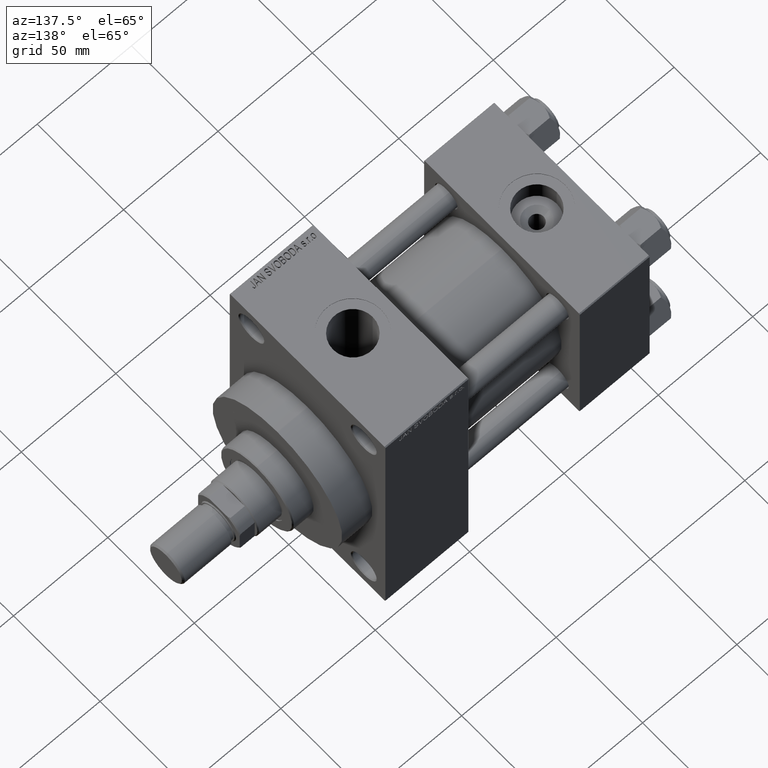
[diagram: clean part render]
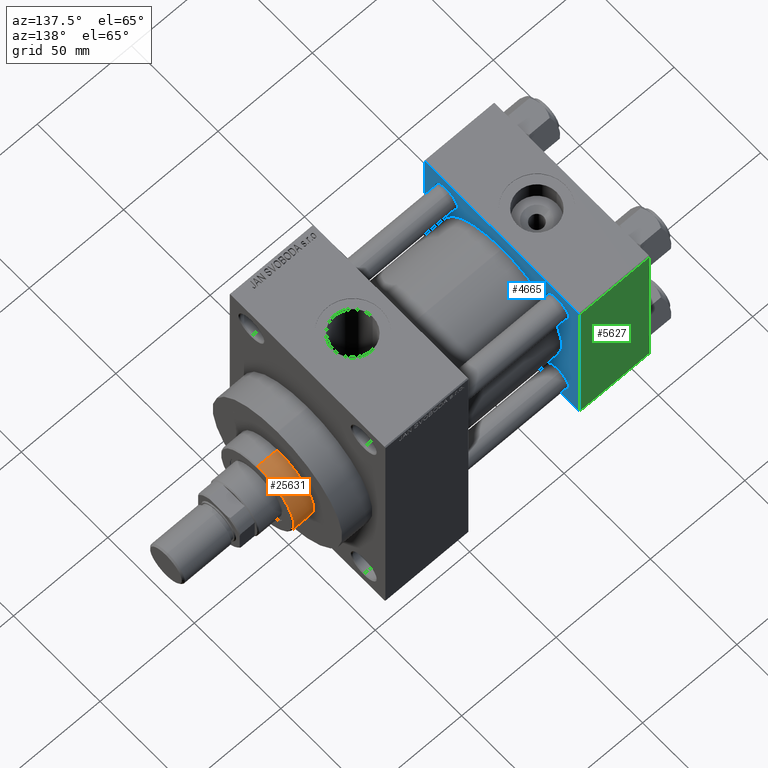
[diagram: same view with three faces highlighted in distinct colors, each labeled with its STEP entity id]
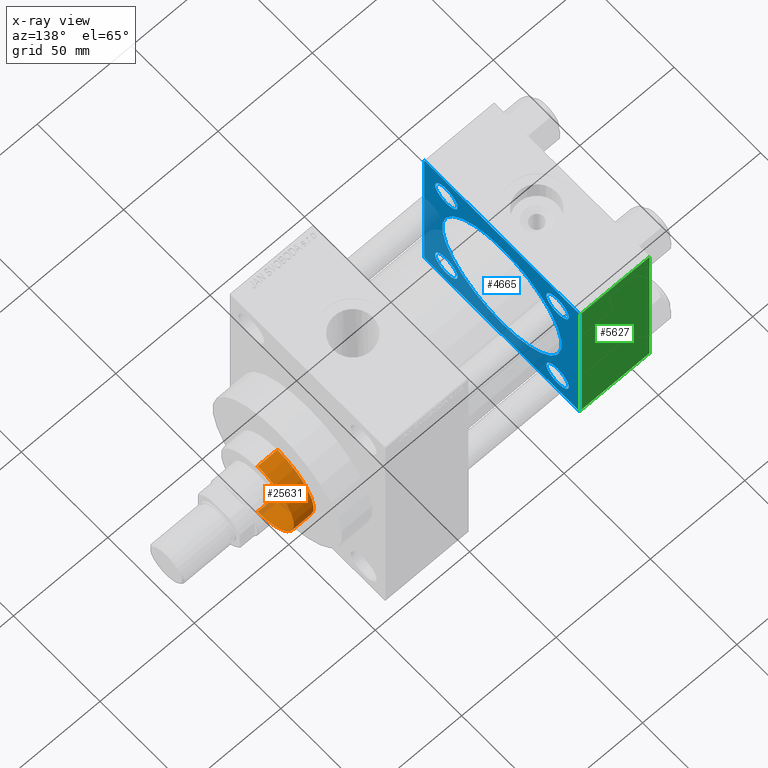
[diagram: x-ray of the same camera — body ghosted, the three highlighted faces saturated]
A machine part, auxiliary view with three faces highlighted in distinct colors.
The next image is the same camera in x-ray (body ghosted, the three faces saturated) — at least one of them is partly hidden behind the body in this view.
Their STEP definitions:

[orange] entity #25631 — the highlighted cylindrical surface (partial cylindrical patch) has radius 21 mm, axis along (-1, 0, 0).
#2385 = ORIENTED_EDGE ( 'NONE', *, *, #3166, .F. ) ;
#2938 = VERTEX_POINT ( 'NONE', #44275 ) ;
#2951 = AXIS2_PLACEMENT_3D ( 'NONE', #23863, #16398, #31340 ) ;
#3166 = EDGE_CURVE ( 'NONE', #7583, #44455, #44223, .T. ) ;
#4418 = DIRECTION ( 'NONE',  ( -1.000000000000000000, 0.000000000000000000, 0.000000000000000000 ) ) ;
#5724 = VECTOR ( 'NONE', #37229, 1000.000000000000000 ) ;
#7583 = VERTEX_POINT ( 'NONE', #23283 ) ;
#8013 = CARTESIAN_POINT ( 'NONE',  ( 21.00000000000000000, 2.571758278209441661E-15, 43.25999999999999801 ) ) ;
#8029 = FACE_OUTER_BOUND ( 'NONE', #42785, .T. ) ;
#8054 = CARTESIAN_POINT ( 'NONE',  ( -21.00000000000000000, 0.000000000000000000, 53.76000000000001933 ) ) ;
#9073 = VECTOR ( 'NONE', #9357, 1000.000000000000000 ) ;
#9357 = DIRECTION ( 'NONE',  ( -0.000000000000000000, -0.000000000000000000, -1.000000000000000000 ) ) ;
#10550 = ORIENTED_EDGE ( 'NONE', *, *, #46655, .T. ) ;
#10722 = DIRECTION ( 'NONE',  ( 1.000000000000000000, 0.000000000000000000, 0.000000000000000000 ) ) ;
#10770 = VERTEX_POINT ( 'NONE', #8054 ) ;
#10812 = ORIENTED_EDGE ( 'NONE', *, *, #16061, .T. ) ;
#12119 = CARTESIAN_POINT ( 'NONE',  ( 0.000000000000000000, 0.000000000000000000, 54.26000000000000512 ) ) ;
#12403 = AXIS2_PLACEMENT_3D ( 'NONE', #12119, #34533, #4418 ) ;
#13716 = EDGE_CURVE ( 'NONE', #10770, #2938, #20186, .T. ) ;
#16061 = EDGE_CURVE ( 'NONE', #2938, #44455, #39140, .T. ) ;
#16398 = DIRECTION ( 'NONE',  ( 0.000000000000000000, 0.000000000000000000, -1.000000000000000000 ) ) ;
#20186 = LINE ( 'NONE', #27164, #9073 ) ;
#21672 = ORIENTED_EDGE ( 'NONE', *, *, #13716, .T. ) ;
#23283 = CARTESIAN_POINT ( 'NONE',  ( 21.00000000000000000, 2.571758278209441661E-15, 53.76000000000001933 ) ) ;
#23863 = CARTESIAN_POINT ( 'NONE',  ( 0.000000000000000000, 0.000000000000000000, 53.76000000000001933 ) ) ;
#24445 = DIRECTION ( 'NONE',  ( 0.000000000000000000, 0.000000000000000000, 1.000000000000000000 ) ) ;
#25270 = AXIS2_PLACEMENT_3D ( 'NONE', #43740, #24445, #10722 ) ;
#25631 = ADVANCED_FACE ( 'NONE', ( #8029 ), #27027, .T. ) ;
#27027 = CYLINDRICAL_SURFACE ( 'NONE', #12403, 21.00000000000000000 ) ;
#27164 = CARTESIAN_POINT ( 'NONE',  ( -21.00000000000000000, 0.000000000000000000, 54.26000000000000512 ) ) ;
#31340 = DIRECTION ( 'NONE',  ( 1.000000000000000000, 0.000000000000000000, 0.000000000000000000 ) ) ;
#34533 = DIRECTION ( 'NONE',  ( -0.000000000000000000, -0.000000000000000000, -1.000000000000000000 ) ) ;
#37229 = DIRECTION ( 'NONE',  ( -0.000000000000000000, -0.000000000000000000, -1.000000000000000000 ) ) ;
#39140 = CIRCLE ( 'NONE', #25270, 21.00000000000000000 ) ;
#42785 = EDGE_LOOP ( 'NONE', ( #2385, #10550, #21672, #10812 ) ) ;
#43740 = CARTESIAN_POINT ( 'NONE',  ( 0.000000000000000000, 0.000000000000000000, 43.25999999999999801 ) ) ;
#44223 = LINE ( 'NONE', #45185, #5724 ) ;
#44275 = CARTESIAN_POINT ( 'NONE',  ( -21.00000000000000000, 0.000000000000000000, 43.25999999999999801 ) ) ;
#44455 = VERTEX_POINT ( 'NONE', #8013 ) ;
#44534 = CIRCLE ( 'NONE', #2951, 21.00000000000000000 ) ;
#45185 = CARTESIAN_POINT ( 'NONE',  ( 21.00000000000000000, 2.571758278209441661E-15, 54.26000000000000512 ) ) ;
#46655 = EDGE_CURVE ( 'NONE', #7583, #10770, #44534, .T. ) ;

[blue] entity #4665 — the highlighted planar face has unit normal (-1, 0, 0).
#119 = EDGE_CURVE ( 'NONE', #15683, #17046, #37806, .T. ) ;
#161 = DIRECTION ( 'NONE',  ( 0.000000000000000000, 0.000000000000000000, 1.000000000000000000 ) ) ;
#200 = CARTESIAN_POINT ( 'NONE',  ( 37.00000000000000000, -32.14999999999997726, 38.65000000000001990 ) ) ;
#249 = CARTESIAN_POINT ( 'NONE',  ( 37.00000000000000000, -45.00000000000000711, 44.49999999999997158 ) ) ;
#304 = EDGE_CURVE ( 'NONE', #4914, #24771, #36648, .T. ) ;
#455 = CIRCLE ( 'NONE', #46620, 34.50000000000000000 ) ;
#675 = DIRECTION ( 'NONE',  ( 1.000000000000000000, -0.000000000000000000, 0.000000000000000000 ) ) ;
#1119 = CARTESIAN_POINT ( 'NONE',  ( 37.00000000000000000, 32.14999999999999147, -25.64999999999997016 ) ) ;
#1333 = CARTESIAN_POINT ( 'NONE',  ( 37.00000000000000000, -44.49999999999995737, -45.00000000000000000 ) ) ;
#1382 = FACE_OUTER_BOUND ( 'NONE', #25177, .T. ) ;
#1383 = CARTESIAN_POINT ( 'NONE',  ( 37.00000000000000000, -2.602085213965210642E-15, 34.50000000000000000 ) ) ;
#2033 = EDGE_CURVE ( 'NONE', #8396, #43105, #24354, .T. ) ;
#2348 = CARTESIAN_POINT ( 'NONE',  ( 37.00000000000000000, 32.14999999999999147, 25.64999999999997016 ) ) ;
#3047 = DIRECTION ( 'NONE',  ( -1.000000000000000000, 0.000000000000000000, -0.000000000000000000 ) ) ;
#3231 = CARTESIAN_POINT ( 'NONE',  ( 37.00000000000000000, 44.99999999999998579, -44.49999999999998579 ) ) ;
#3324 = CARTESIAN_POINT ( 'NONE',  ( 37.00000000000000000, -2.602085213965210642E-15, 0.000000000000000000 ) ) ;
#3522 = CIRCLE ( 'NONE', #40469, 6.500000000000033751 ) ;
#3543 = AXIS2_PLACEMENT_3D ( 'NONE', #13823, #39602, #16963 ) ;
#3667 = ORIENTED_EDGE ( 'NONE', *, *, #31249, .T. ) ;
#3769 = CARTESIAN_POINT ( 'NONE',  ( 37.00000000000000000, -32.14999999999997726, -32.15000000000001279 ) ) ;
#4665 = ADVANCED_FACE ( 'NONE', ( #26014, #30999, #44359, #34642, #22165, #1382 ), #45490, .F. ) ;
#4914 = VERTEX_POINT ( 'NONE', #32910 ) ;
#5019 = EDGE_CURVE ( 'NONE', #28124, #7600, #455, .T. ) ;
#5133 = DIRECTION ( 'NONE',  ( 0.000000000000000000, 0.000000000000000000, 1.000000000000000000 ) ) ;
#5352 = CARTESIAN_POINT ( 'NONE',  ( 37.00000000000000000, 44.49999999999998579, 45.00000000000001421 ) ) ;
#5715 = ORIENTED_EDGE ( 'NONE', *, *, #40942, .T. ) ;
#5935 = CARTESIAN_POINT ( 'NONE',  ( 37.00000000000000000, 44.99999999999998579, -44.49999999999995737 ) ) ;
#6571 = ORIENTED_EDGE ( 'NONE', *, *, #41485, .T. ) ;
#6605 = DIRECTION ( 'NONE',  ( -0.000000000000000000, 0.7071067811865474617, 0.7071067811865474617 ) ) ;
#6995 = DIRECTION ( 'NONE',  ( -0.000000000000000000, -0.7071067811865425767, -0.7071067811865524577 ) ) ;
#7163 = EDGE_CURVE ( 'NONE', #34786, #24506, #24960, .T. ) ;
#7600 = VERTEX_POINT ( 'NONE', #1383 ) ;
#8035 = AXIS2_PLACEMENT_3D ( 'NONE', #3769, #33170, #161 ) ;
#8043 = CARTESIAN_POINT ( 'NONE',  ( 37.00000000000000000, -45.00000000000000000, -44.49999999999995737 ) ) ;
#8249 = CARTESIAN_POINT ( 'NONE',  ( 37.00000000000000000, -32.14999999999997726, 32.15000000000001279 ) ) ;
#8396 = VERTEX_POINT ( 'NONE', #47032 ) ;
#8997 = CARTESIAN_POINT ( 'NONE',  ( 37.00000000000000000, -2.602085213965210642E-15, 0.000000000000000000 ) ) ;
#9401 = ORIENTED_EDGE ( 'NONE', *, *, #27285, .T. ) ;
#9442 = ORIENTED_EDGE ( 'NONE', *, *, #45425, .F. ) ;
#9496 = EDGE_LOOP ( 'NONE', ( #22797, #10397 ) ) ;
#9512 = CIRCLE ( 'NONE', #13352, 6.500000000000033751 ) ;
#9671 = EDGE_LOOP ( 'NONE', ( #31462, #18607 ) ) ;
#9708 = VERTEX_POINT ( 'NONE', #2348 ) ;
#9792 = CARTESIAN_POINT ( 'NONE',  ( 37.00000000000000000, 32.14999999999999147, -38.65000000000004121 ) ) ;
#9859 = CIRCLE ( 'NONE', #20615, 6.500000000000005329 ) ;
#10023 = CARTESIAN_POINT ( 'NONE',  ( 37.00000000000000000, -32.14999999999997726, -25.65000000000000568 ) ) ;
#10397 = ORIENTED_EDGE ( 'NONE', *, *, #36474, .T. ) ;
#10427 = LINE ( 'NONE', #25094, #35973 ) ;
#10936 = ORIENTED_EDGE ( 'NONE', *, *, #12566, .T. ) ;
#11573 = CARTESIAN_POINT ( 'NONE',  ( 37.00000000000000000, -32.14999999999997726, -32.15000000000001279 ) ) ;
#11658 = AXIS2_PLACEMENT_3D ( 'NONE', #8249, #30395, #20022 ) ;
#12445 = CARTESIAN_POINT ( 'NONE',  ( 37.00000000000000000, 32.14999999999999147, -32.15000000000000568 ) ) ;
#12566 = EDGE_CURVE ( 'NONE', #47278, #40579, #10427, .T. ) ;
#13095 = CARTESIAN_POINT ( 'NONE',  ( 37.00000000000000000, -32.14999999999997726, 25.65000000000000568 ) ) ;
#13352 = AXIS2_PLACEMENT_3D ( 'NONE', #37028, #3047, #47163 ) ;
#13823 = CARTESIAN_POINT ( 'NONE',  ( 37.00000000000000000, 32.14999999999999147, 32.15000000000000568 ) ) ;
#14066 = VECTOR ( 'NONE', #39076, 1000.000000000000114 ) ;
#14536 = EDGE_LOOP ( 'NONE', ( #9401, #47004 ) ) ;
#14597 = EDGE_CURVE ( 'NONE', #28244, #46030, #9859, .T. ) ;
#15075 = VECTOR ( 'NONE', #18836, 1000.000000000000000 ) ;
#15683 = VERTEX_POINT ( 'NONE', #200 ) ;
#16236 = CARTESIAN_POINT ( 'NONE',  ( 37.00000000000000000, 32.14999999999999147, -32.15000000000000568 ) ) ;
#16963 = DIRECTION ( 'NONE',  ( 0.000000000000000000, 0.000000000000000000, 1.000000000000000000 ) ) ;
#17046 = VERTEX_POINT ( 'NONE', #13095 ) ;
#17769 = CARTESIAN_POINT ( 'NONE',  ( 37.00000000000000000, 44.49999999999998579, -44.99999999999998579 ) ) ;
#18002 = DIRECTION ( 'NONE',  ( 0.000000000000000000, 0.000000000000000000, 1.000000000000000000 ) ) ;
#18154 = VERTEX_POINT ( 'NONE', #5935 ) ;
#18251 = VECTOR ( 'NONE', #6605, 1000.000000000000114 ) ;
#18301 = DIRECTION ( 'NONE',  ( -0.000000000000000000, 0.000000000000000000, 1.000000000000000000 ) ) ;
#18436 = ORIENTED_EDGE ( 'NONE', *, *, #30909, .F. ) ;
#18607 = ORIENTED_EDGE ( 'NONE', *, *, #5019, .F. ) ;
#18836 = DIRECTION ( 'NONE',  ( 0.000000000000000000, 7.709882115452476934E-17, -1.000000000000000000 ) ) ;
#18912 = AXIS2_PLACEMENT_3D ( 'NONE', #3324, #675, #18002 ) ;
#19820 = CARTESIAN_POINT ( 'NONE',  ( 37.00000000000000000, -32.14999999999997726, 32.15000000000001279 ) ) ;
#20022 = DIRECTION ( 'NONE',  ( 0.000000000000000000, 0.000000000000000000, 1.000000000000000000 ) ) ;
#20615 = AXIS2_PLACEMENT_3D ( 'NONE', #11573, #22401, #26248 ) ;
#21394 = CARTESIAN_POINT ( 'NONE',  ( 37.00000000000000000, 44.99999999999998579, 45.00000000000001421 ) ) ;
#21668 = CIRCLE ( 'NONE', #23219, 6.500000000000005329 ) ;
#22165 = FACE_BOUND ( 'NONE', #9671, .T. ) ;
#22173 = ORIENTED_EDGE ( 'NONE', *, *, #37020, .T. ) ;
#22219 = CARTESIAN_POINT ( 'NONE',  ( 37.00000000000000000, -45.00000000000000711, 45.00000000000000000 ) ) ;
#22401 = DIRECTION ( 'NONE',  ( -1.000000000000000000, 0.000000000000000000, -0.000000000000000000 ) ) ;
#22797 = ORIENTED_EDGE ( 'NONE', *, *, #7163, .T. ) ;
#23219 = AXIS2_PLACEMENT_3D ( 'NONE', #19820, #46098, #5133 ) ;
#23717 = EDGE_LOOP ( 'NONE', ( #6571, #3667 ) ) ;
#23752 = DIRECTION ( 'NONE',  ( 0.000000000000000000, 0.000000000000000000, 1.000000000000000000 ) ) ;
#24067 = VECTOR ( 'NONE', #41412, 1000.000000000000000 ) ;
#24294 = DIRECTION ( 'NONE',  ( 0.000000000000000000, -1.000000000000000000, -1.541976423090495387E-16 ) ) ;
#24302 = VECTOR ( 'NONE', #24294, 1000.000000000000000 ) ;
#24354 = LINE ( 'NONE', #5352, #14066 ) ;
#24506 = VERTEX_POINT ( 'NONE', #1119 ) ;
#24771 = VERTEX_POINT ( 'NONE', #43334 ) ;
#24899 = LINE ( 'NONE', #32634, #34487 ) ;
#24960 = CIRCLE ( 'NONE', #28821, 6.500000000000033751 ) ;
#25094 = CARTESIAN_POINT ( 'NONE',  ( 37.00000000000000000, -44.49999999999998579, -45.00000000000000000 ) ) ;
#25177 = EDGE_LOOP ( 'NONE', ( #9442, #28760, #18436, #42409, #5715, #43148, #22173, #10936 ) ) ;
#26014 = FACE_BOUND ( 'NONE', #31517, .T. ) ;
#26216 = LINE ( 'NONE', #34180, #24067 ) ;
#26248 = DIRECTION ( 'NONE',  ( 0.000000000000000000, 0.000000000000000000, 1.000000000000000000 ) ) ;
#26871 = ORIENTED_EDGE ( 'NONE', *, *, #14597, .T. ) ;
#27285 = EDGE_CURVE ( 'NONE', #17046, #15683, #21668, .T. ) ;
#27315 = AXIS2_PLACEMENT_3D ( 'NONE', #40500, #36892, #18301 ) ;
#27648 = VERTEX_POINT ( 'NONE', #46892 ) ;
#28011 = DIRECTION ( 'NONE',  ( 0.000000000000000000, 0.000000000000000000, 1.000000000000000000 ) ) ;
#28124 = VERTEX_POINT ( 'NONE', #46775 ) ;
#28244 = VERTEX_POINT ( 'NONE', #10023 ) ;
#28760 = ORIENTED_EDGE ( 'NONE', *, *, #44550, .T. ) ;
#28821 = AXIS2_PLACEMENT_3D ( 'NONE', #16236, #42030, #28011 ) ;
#28859 = LINE ( 'NONE', #21394, #24302 ) ;
#29009 = DIRECTION ( 'NONE',  ( 0.000000000000000000, -1.000000000000000000, -1.541976423090495633E-16 ) ) ;
#29721 = ORIENTED_EDGE ( 'NONE', *, *, #32286, .T. ) ;
#30395 = DIRECTION ( 'NONE',  ( -1.000000000000000000, 0.000000000000000000, -0.000000000000000000 ) ) ;
#30909 = EDGE_CURVE ( 'NONE', #8396, #18154, #26216, .T. ) ;
#30999 = FACE_BOUND ( 'NONE', #9496, .T. ) ;
#31249 = EDGE_CURVE ( 'NONE', #27648, #9708, #9512, .T. ) ;
#31462 = ORIENTED_EDGE ( 'NONE', *, *, #40280, .F. ) ;
#31517 = EDGE_LOOP ( 'NONE', ( #29721, #26871 ) ) ;
#32286 = EDGE_CURVE ( 'NONE', #46030, #28244, #36487, .T. ) ;
#32634 = CARTESIAN_POINT ( 'NONE',  ( 37.00000000000000000, 44.99999999999998579, -44.99999999999998579 ) ) ;
#32910 = CARTESIAN_POINT ( 'NONE',  ( 37.00000000000000000, -44.49999999999995737, 45.00000000000000000 ) ) ;
#33170 = DIRECTION ( 'NONE',  ( -1.000000000000000000, 0.000000000000000000, -0.000000000000000000 ) ) ;
#34180 = CARTESIAN_POINT ( 'NONE',  ( 37.00000000000000000, 44.99999999999998579, 45.00000000000001421 ) ) ;
#34487 = VECTOR ( 'NONE', #29009, 1000.000000000000000 ) ;
#34561 = DIRECTION ( 'NONE',  ( 1.000000000000000000, -0.000000000000000000, 0.000000000000000000 ) ) ;
#34642 = FACE_BOUND ( 'NONE', #23717, .T. ) ;
#34786 = VERTEX_POINT ( 'NONE', #9792 ) ;
#35842 = VERTEX_POINT ( 'NONE', #17769 ) ;
#35893 = CIRCLE ( 'NONE', #3543, 6.500000000000033751 ) ;
#35915 = CARTESIAN_POINT ( 'NONE',  ( 37.00000000000000000, -32.14999999999997726, -38.65000000000001990 ) ) ;
#35973 = VECTOR ( 'NONE', #46834, 1000.000000000000114 ) ;
#36262 = LINE ( 'NONE', #3231, #18251 ) ;
#36474 = EDGE_CURVE ( 'NONE', #24506, #34786, #3522, .T. ) ;
#36487 = CIRCLE ( 'NONE', #8035, 6.500000000000005329 ) ;
#36648 = LINE ( 'NONE', #249, #44756 ) ;
#36892 = DIRECTION ( 'NONE',  ( -1.000000000000000000, 0.000000000000000000, -0.000000000000000000 ) ) ;
#37020 = EDGE_CURVE ( 'NONE', #24771, #47278, #44414, .T. ) ;
#37028 = CARTESIAN_POINT ( 'NONE',  ( 37.00000000000000000, 32.14999999999999147, 32.15000000000000568 ) ) ;
#37700 = DIRECTION ( 'NONE',  ( 0.000000000000000000, 0.000000000000000000, 1.000000000000000000 ) ) ;
#37806 = CIRCLE ( 'NONE', #11658, 6.500000000000005329 ) ;
#39076 = DIRECTION ( 'NONE',  ( 0.000000000000000000, -0.7071067811865474617, 0.7071067811865474617 ) ) ;
#39602 = DIRECTION ( 'NONE',  ( -1.000000000000000000, 0.000000000000000000, -0.000000000000000000 ) ) ;
#39690 = CARTESIAN_POINT ( 'NONE',  ( 37.00000000000000000, 44.49999999999998579, 45.00000000000001421 ) ) ;
#39691 = CIRCLE ( 'NONE', #18912, 34.50000000000000000 ) ;
#40280 = EDGE_CURVE ( 'NONE', #7600, #28124, #39691, .T. ) ;
#40469 = AXIS2_PLACEMENT_3D ( 'NONE', #12445, #46196, #23752 ) ;
#40500 = CARTESIAN_POINT ( 'NONE',  ( 37.00000000000000000, 0.000000000000000000, 0.000000000000000000 ) ) ;
#40579 = VERTEX_POINT ( 'NONE', #1333 ) ;
#40942 = EDGE_CURVE ( 'NONE', #43105, #4914, #28859, .T. ) ;
#41412 = DIRECTION ( 'NONE',  ( 0.000000000000000000, 0.000000000000000000, -1.000000000000000000 ) ) ;
#41485 = EDGE_CURVE ( 'NONE', #9708, #27648, #35893, .T. ) ;
#42030 = DIRECTION ( 'NONE',  ( -1.000000000000000000, 0.000000000000000000, -0.000000000000000000 ) ) ;
#42409 = ORIENTED_EDGE ( 'NONE', *, *, #2033, .T. ) ;
#43105 = VERTEX_POINT ( 'NONE', #39690 ) ;
#43148 = ORIENTED_EDGE ( 'NONE', *, *, #304, .T. ) ;
#43334 = CARTESIAN_POINT ( 'NONE',  ( 37.00000000000000000, -45.00000000000000711, 44.49999999999997158 ) ) ;
#44359 = FACE_BOUND ( 'NONE', #14536, .T. ) ;
#44414 = LINE ( 'NONE', #22219, #15075 ) ;
#44550 = EDGE_CURVE ( 'NONE', #35842, #18154, #36262, .T. ) ;
#44756 = VECTOR ( 'NONE', #6995, 1000.000000000000114 ) ;
#45425 = EDGE_CURVE ( 'NONE', #35842, #40579, #24899, .T. ) ;
#45490 = PLANE ( 'NONE',  #27315 ) ;
#46030 = VERTEX_POINT ( 'NONE', #35915 ) ;
#46098 = DIRECTION ( 'NONE',  ( -1.000000000000000000, 0.000000000000000000, -0.000000000000000000 ) ) ;
#46196 = DIRECTION ( 'NONE',  ( -1.000000000000000000, 0.000000000000000000, -0.000000000000000000 ) ) ;
#46620 = AXIS2_PLACEMENT_3D ( 'NONE', #8997, #34561, #37700 ) ;
#46775 = CARTESIAN_POINT ( 'NONE',  ( 37.00000000000000000, 1.622946243093158675E-15, -34.50000000000000000 ) ) ;
#46834 = DIRECTION ( 'NONE',  ( 0.000000000000000000, 0.7071067811865474617, -0.7071067811865474617 ) ) ;
#46892 = CARTESIAN_POINT ( 'NONE',  ( 37.00000000000000000, 32.14999999999999147, 38.65000000000004121 ) ) ;
#47004 = ORIENTED_EDGE ( 'NONE', *, *, #119, .T. ) ;
#47032 = CARTESIAN_POINT ( 'NONE',  ( 37.00000000000000000, 44.99999999999998579, 44.50000000000001421 ) ) ;
#47163 = DIRECTION ( 'NONE',  ( 0.000000000000000000, 0.000000000000000000, 1.000000000000000000 ) ) ;
#47278 = VERTEX_POINT ( 'NONE', #8043 ) ;

[green] entity #5627 — the highlighted planar face has unit normal (0, 1, 0).
#526 = EDGE_CURVE ( 'NONE', #9832, #8396, #4521, .T. ) ;
#2861 = EDGE_CURVE ( 'NONE', #9832, #34312, #37281, .T. ) ;
#4521 = LINE ( 'NONE', #7659, #35489 ) ;
#5627 = ADVANCED_FACE ( 'NONE', ( #17506 ), #18465, .T. ) ;
#5935 = CARTESIAN_POINT ( 'NONE',  ( 37.00000000000000000, 44.99999999999998579, -44.49999999999995737 ) ) ;
#7136 = ORIENTED_EDGE ( 'NONE', *, *, #526, .T. ) ;
#7659 = CARTESIAN_POINT ( 'NONE',  ( 37.00000000000000000, 44.99999999999998579, 44.50000000000001421 ) ) ;
#8396 = VERTEX_POINT ( 'NONE', #47032 ) ;
#9832 = VERTEX_POINT ( 'NONE', #43538 ) ;
#10784 = DIRECTION ( 'NONE',  ( -0.000000000000000000, 1.000000000000000000, 0.000000000000000000 ) ) ;
#11197 = LINE ( 'NONE', #26353, #18509 ) ;
#14691 = ORIENTED_EDGE ( 'NONE', *, *, #2861, .F. ) ;
#14707 = ORIENTED_EDGE ( 'NONE', *, *, #24678, .T. ) ;
#17506 = FACE_OUTER_BOUND ( 'NONE', #46680, .T. ) ;
#18154 = VERTEX_POINT ( 'NONE', #5935 ) ;
#18465 = PLANE ( 'NONE',  #40455 ) ;
#18509 = VECTOR ( 'NONE', #36989, 1000.000000000000000 ) ;
#18716 = DIRECTION ( 'NONE',  ( 1.000000000000000000, 0.000000000000000000, 0.000000000000000000 ) ) ;
#24067 = VECTOR ( 'NONE', #41412, 1000.000000000000000 ) ;
#24678 = EDGE_CURVE ( 'NONE', #18154, #34312, #11197, .T. ) ;
#26216 = LINE ( 'NONE', #34180, #24067 ) ;
#26353 = CARTESIAN_POINT ( 'NONE',  ( 37.00000000000000000, 44.99999999999998579, -44.49999999999998579 ) ) ;
#26500 = VECTOR ( 'NONE', #33905, 1000.000000000000000 ) ;
#30270 = CARTESIAN_POINT ( 'NONE',  ( 0.000000000000000000, 44.99999999999998579, 45.00000000000001421 ) ) ;
#30909 = EDGE_CURVE ( 'NONE', #8396, #18154, #26216, .T. ) ;
#33187 = DIRECTION ( 'NONE',  ( 0.000000000000000000, -0.000000000000000000, 1.000000000000000000 ) ) ;
#33905 = DIRECTION ( 'NONE',  ( 0.000000000000000000, 0.000000000000000000, -1.000000000000000000 ) ) ;
#34180 = CARTESIAN_POINT ( 'NONE',  ( 37.00000000000000000, 44.99999999999998579, 45.00000000000001421 ) ) ;
#34312 = VERTEX_POINT ( 'NONE', #36939 ) ;
#35489 = VECTOR ( 'NONE', #18716, 1000.000000000000000 ) ;
#36939 = CARTESIAN_POINT ( 'NONE',  ( 0.000000000000000000, 44.99999999999998579, -44.49999999999995737 ) ) ;
#36989 = DIRECTION ( 'NONE',  ( -1.000000000000000000, 0.000000000000000000, 0.000000000000000000 ) ) ;
#37281 = LINE ( 'NONE', #30270, #26500 ) ;
#40455 = AXIS2_PLACEMENT_3D ( 'NONE', #46941, #10784, #33187 ) ;
#41412 = DIRECTION ( 'NONE',  ( 0.000000000000000000, 0.000000000000000000, -1.000000000000000000 ) ) ;
#43538 = CARTESIAN_POINT ( 'NONE',  ( 0.000000000000000000, 44.99999999999998579, 44.50000000000001421 ) ) ;
#46680 = EDGE_LOOP ( 'NONE', ( #47264, #14707, #14691, #7136 ) ) ;
#46941 = CARTESIAN_POINT ( 'NONE',  ( 37.00000000000000000, 44.99999999999998579, 45.00000000000001421 ) ) ;
#47032 = CARTESIAN_POINT ( 'NONE',  ( 37.00000000000000000, 44.99999999999998579, 44.50000000000001421 ) ) ;
#47264 = ORIENTED_EDGE ( 'NONE', *, *, #30909, .T. ) ;